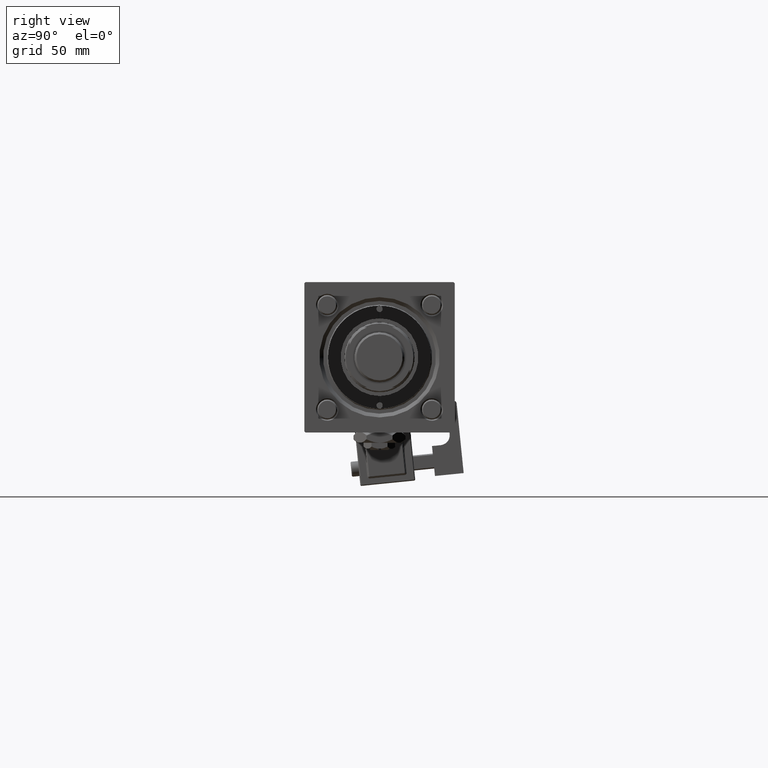
[diagram: clean part render]
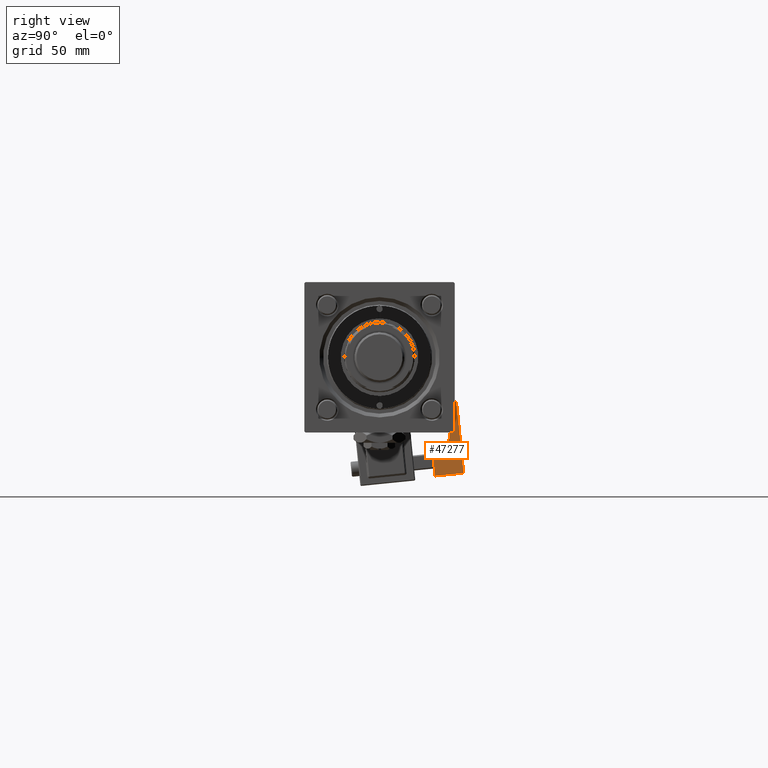
[diagram: same view with one face highlighted and labeled with its STEP entity id]
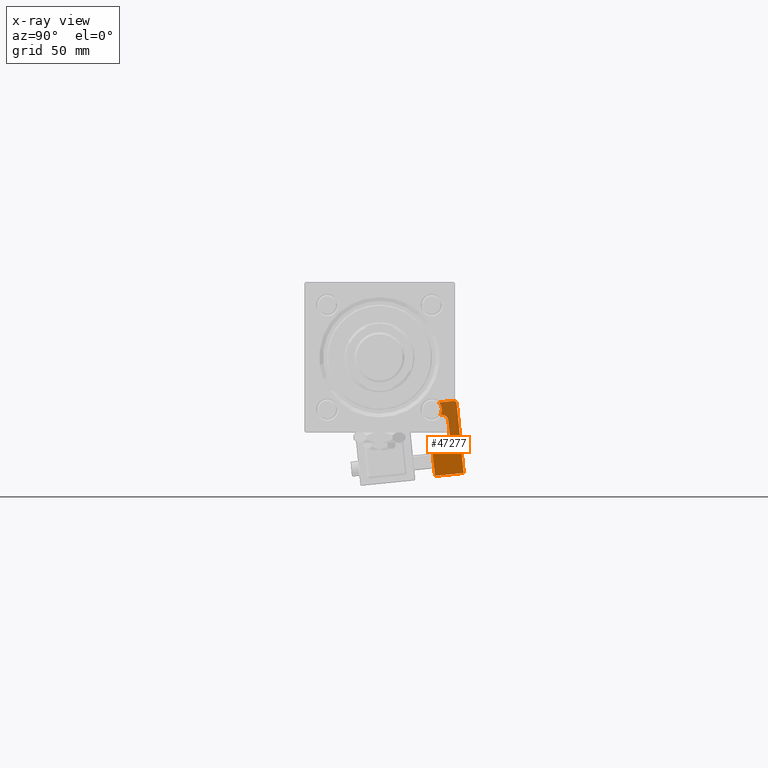
[diagram: x-ray of the same camera — body ghosted, the highlighted face saturated]
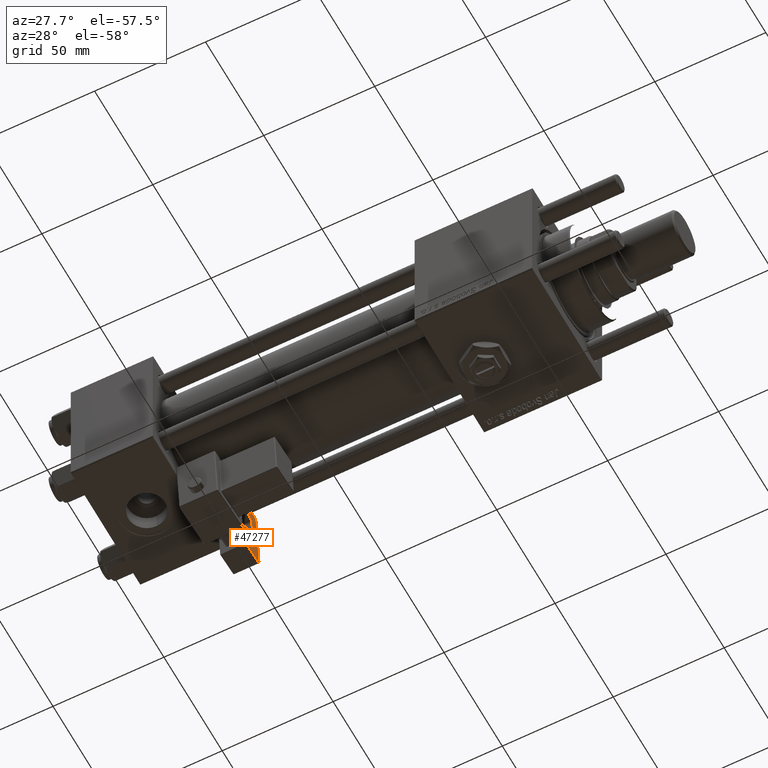
[diagram: same view with one face highlighted and labeled with its STEP entity id]
A machine part, right view. The second image highlights one B-rep face of the part: STEP entity #47277.
The next image is the same camera in x-ray: the body ghosted, the highlighted face saturated — about 22% of this face is hidden behind the body in this view.
A second angle (auxiliary view) of the same face is appended — the face is thin or edge-on in the first view.
In plain terms, the highlighted planar face has unit normal (-1, 0, 0).
Its self-contained STEP definition (entity closure, byte-faithful):
#1027 = DIRECTION ( 'NONE',  ( -0.000000000000000000, -0.000000000000000000, -1.000000000000000000 ) ) ;
#2803 = CARTESIAN_POINT ( 'NONE',  ( 5.750000000000000000, 5.750000000000001776, 12.00000000000000000 ) ) ;
#3410 = FACE_OUTER_BOUND ( 'NONE', #27022, .T. ) ;
#4634 = CARTESIAN_POINT ( 'NONE',  ( 5.750000000000000000, 5.750000000000001776, 0.000000000000000000 ) ) ;
#5125 = VECTOR ( 'NONE', #53177, 1000.000000000000000 ) ;
#5418 = CARTESIAN_POINT ( 'NONE',  ( 5.750000000000000000, 5.750000000000001776, 12.00000000000000000 ) ) ;
#6031 = LINE ( 'NONE', #5418, #5125 ) ;
#6368 = CARTESIAN_POINT ( 'NONE',  ( 5.750000000000000000, 1.749999999999997558, 16.00000000000000000 ) ) ;
#6593 = VERTEX_POINT ( 'NONE', #7686 ) ;
#6712 = VERTEX_POINT ( 'NONE', #41748 ) ;
#7686 = CARTESIAN_POINT ( 'NONE',  ( 5.750000000000000000, 4.750000000000002665, 29.00000000000000000 ) ) ;
#8461 = ORIENTED_EDGE ( 'NONE', *, *, #21937, .T. ) ;
#8710 = VERTEX_POINT ( 'NONE', #31130 ) ;
#9748 = ORIENTED_EDGE ( 'NONE', *, *, #43886, .T. ) ;
#10296 = CARTESIAN_POINT ( 'NONE',  ( 5.750000000000000000, -0.7500000000000007772, 21.50000000000000000 ) ) ;
#11820 = DIRECTION ( 'NONE',  ( -0.000000000000000000, 1.000000000000000000, -0.000000000000000000 ) ) ;
#12790 = LINE ( 'NONE', #32599, #17118 ) ;
#12921 = CARTESIAN_POINT ( 'NONE',  ( 5.750000000000000000, 1.749999999999999112, 21.50000000000000000 ) ) ;
#13217 = CARTESIAN_POINT ( 'NONE',  ( 5.750000000000000000, 5.750000000000001776, 0.000000000000000000 ) ) ;
#13461 = ORIENTED_EDGE ( 'NONE', *, *, #39842, .T. ) ;
#15068 = VERTEX_POINT ( 'NONE', #47446 ) ;
#15398 = CARTESIAN_POINT ( 'NONE',  ( 5.750000000000000000, -1.249999999999999334, 29.00000000000000000 ) ) ;
#15788 = LINE ( 'NONE', #44898, #59937 ) ;
#15878 = VERTEX_POINT ( 'NONE', #33485 ) ;
#16726 = CIRCLE ( 'NONE', #34540, 2.499999999999998668 ) ;
#16845 = CARTESIAN_POINT ( 'NONE',  ( 5.750000000000000000, 4.750000000000001776, 28.00000000000000000 ) ) ;
#17118 = VECTOR ( 'NONE', #55261, 1000.000000000000000 ) ;
#19024 = CARTESIAN_POINT ( 'NONE',  ( 5.750000000000000000, -5.750000000000000000, 12.00000000000000000 ) ) ;
#20099 = CARTESIAN_POINT ( 'NONE',  ( 5.750000000000000000, -5.750000000000000000, 0.000000000000000000 ) ) ;
#20339 = ORIENTED_EDGE ( 'NONE', *, *, #58560, .F. ) ;
#20357 = VERTEX_POINT ( 'NONE', #6368 ) ;
#20858 = EDGE_CURVE ( 'NONE', #6593, #36948, #36941, .T. ) ;
#20914 = VECTOR ( 'NONE', #11820, 1000.000000000000000 ) ;
#21504 = VECTOR ( 'NONE', #1027, 1000.000000000000000 ) ;
#21937 = EDGE_CURVE ( 'NONE', #15068, #42614, #16726, .T. ) ;
#22336 = DIRECTION ( 'NONE',  ( 0.000000000000000000, 0.000000000000000000, 1.000000000000000000 ) ) ;
#22579 = DIRECTION ( 'NONE',  ( 0.000000000000000000, 1.000000000000000000, 0.000000000000000000 ) ) ;
#23636 = DIRECTION ( 'NONE',  ( -1.000000000000000000, 0.000000000000000000, 0.000000000000000000 ) ) ;
#24222 = DIRECTION ( 'NONE',  ( 0.000000000000000000, -1.000000000000000000, 0.000000000000000000 ) ) ;
#24589 = VECTOR ( 'NONE', #24929, 1000.000000000000000 ) ;
#24929 = DIRECTION ( 'NONE',  ( -0.000000000000000000, 1.000000000000000000, -0.000000000000000000 ) ) ;
#25568 = AXIS2_PLACEMENT_3D ( 'NONE', #50252, #60183, #22336 ) ;
#26724 = VECTOR ( 'NONE', #24222, 1000.000000000000000 ) ;
#27022 = EDGE_LOOP ( 'NONE', ( #31137, #34137, #46558, #43198, #35290, #8461, #58965, #13461, #20339, #9748, #52562 ) ) ;
#27285 = AXIS2_PLACEMENT_3D ( 'NONE', #16845, #49722, #35737 ) ;
#29306 = EDGE_CURVE ( 'NONE', #6712, #49495, #6031, .T. ) ;
#31130 = CARTESIAN_POINT ( 'NONE',  ( 5.750000000000000000, -2.250000000000001776, 12.00000000000000000 ) ) ;
#31137 = ORIENTED_EDGE ( 'NONE', *, *, #29306, .F. ) ;
#31260 = AXIS2_PLACEMENT_3D ( 'NONE', #32086, #46667, #33000 ) ;
#31726 = EDGE_CURVE ( 'NONE', #42614, #20357, #12790, .T. ) ;
#31940 = VERTEX_POINT ( 'NONE', #20099 ) ;
#32086 = CARTESIAN_POINT ( 'NONE',  ( 5.750000000000000000, -2.250000000000002665, 16.00000000000000000 ) ) ;
#32599 = CARTESIAN_POINT ( 'NONE',  ( 5.750000000000000000, 1.750000000000000000, 24.00000000000000000 ) ) ;
#33000 = DIRECTION ( 'NONE',  ( 0.000000000000000000, 0.000000000000000000, 1.000000000000000000 ) ) ;
#33485 = CARTESIAN_POINT ( 'NONE',  ( 5.750000000000000000, -1.249999999999999334, 24.00000000000000000 ) ) ;
#34137 = ORIENTED_EDGE ( 'NONE', *, *, #39263, .T. ) ;
#34540 = AXIS2_PLACEMENT_3D ( 'NONE', #10296, #23636, #56823 ) ;
#35290 = ORIENTED_EDGE ( 'NONE', *, *, #37701, .T. ) ;
#35737 = DIRECTION ( 'NONE',  ( 0.000000000000000000, -2.602085213965208275E-15, 1.000000000000000000 ) ) ;
#36941 = LINE ( 'NONE', #55895, #26724 ) ;
#36948 = VERTEX_POINT ( 'NONE', #15398 ) ;
#37701 = EDGE_CURVE ( 'NONE', #15878, #15068, #15788, .T. ) ;
#39263 = EDGE_CURVE ( 'NONE', #6712, #6593, #57017, .T. ) ;
#39842 = EDGE_CURVE ( 'NONE', #20357, #8710, #47130, .T. ) ;
#40614 = PLANE ( 'NONE',  #48224 ) ;
#41748 = CARTESIAN_POINT ( 'NONE',  ( 5.750000000000000000, 5.750000000000001776, 28.00000000000000000 ) ) ;
#42559 = LINE ( 'NONE', #19024, #21504 ) ;
#42614 = VERTEX_POINT ( 'NONE', #12921 ) ;
#43198 = ORIENTED_EDGE ( 'NONE', *, *, #49239, .T. ) ;
#43886 = EDGE_CURVE ( 'NONE', #44132, #31940, #42559, .T. ) ;
#44132 = VERTEX_POINT ( 'NONE', #55105 ) ;
#44898 = CARTESIAN_POINT ( 'NONE',  ( 5.750000000000000000, -1.249999999999999334, 24.00000000000000000 ) ) ;
#45259 = LINE ( 'NONE', #54588, #20914 ) ;
#46204 = DIRECTION ( 'NONE',  ( -1.000000000000000000, 0.000000000000000000, 0.000000000000000000 ) ) ;
#46423 = EDGE_CURVE ( 'NONE', #31940, #49495, #56448, .T. ) ;
#46558 = ORIENTED_EDGE ( 'NONE', *, *, #20858, .T. ) ;
#46667 = DIRECTION ( 'NONE',  ( -1.000000000000000000, 0.000000000000000000, 0.000000000000000000 ) ) ;
#47130 = CIRCLE ( 'NONE', #31260, 4.000000000000000000 ) ;
#47277 = ADVANCED_FACE ( 'NONE', ( #3410 ), #40614, .F. ) ;
#47446 = CARTESIAN_POINT ( 'NONE',  ( 5.750000000000000000, -0.7500000000000007772, 24.00000000000000000 ) ) ;
#48224 = AXIS2_PLACEMENT_3D ( 'NONE', #2803, #46204, #59584 ) ;
#49239 = EDGE_CURVE ( 'NONE', #36948, #15878, #57225, .T. ) ;
#49495 = VERTEX_POINT ( 'NONE', #13217 ) ;
#49722 = DIRECTION ( 'NONE',  ( 1.000000000000000000, -0.000000000000000000, -0.000000000000000000 ) ) ;
#50252 = CARTESIAN_POINT ( 'NONE',  ( 5.750000000000000000, -4.372498999199198266, 26.50000000000000355 ) ) ;
#52562 = ORIENTED_EDGE ( 'NONE', *, *, #46423, .T. ) ;
#53177 = DIRECTION ( 'NONE',  ( -0.000000000000000000, -0.000000000000000000, -1.000000000000000000 ) ) ;
#54588 = CARTESIAN_POINT ( 'NONE',  ( 5.750000000000000000, 5.750000000000001776, 12.00000000000000000 ) ) ;
#55105 = CARTESIAN_POINT ( 'NONE',  ( 5.750000000000000000, -5.750000000000000000, 12.00000000000000000 ) ) ;
#55261 = DIRECTION ( 'NONE',  ( 0.000000000000000000, -3.071906155375595568E-16, -1.000000000000000000 ) ) ;
#55895 = CARTESIAN_POINT ( 'NONE',  ( 5.750000000000000000, 5.750000000000000000, 29.00000000000000000 ) ) ;
#56448 = LINE ( 'NONE', #4634, #24589 ) ;
#56823 = DIRECTION ( 'NONE',  ( 0.000000000000000000, 0.000000000000000000, 1.000000000000000000 ) ) ;
#57017 = CIRCLE ( 'NONE', #27285, 1.000000000000000888 ) ;
#57225 = CIRCLE ( 'NONE', #25568, 4.000000000000000000 ) ;
#58560 = EDGE_CURVE ( 'NONE', #44132, #8710, #45259, .T. ) ;
#58965 = ORIENTED_EDGE ( 'NONE', *, *, #31726, .T. ) ;
#59584 = DIRECTION ( 'NONE',  ( 0.000000000000000000, 0.000000000000000000, 1.000000000000000000 ) ) ;
#59937 = VECTOR ( 'NONE', #22579, 1000.000000000000000 ) ;
#60183 = DIRECTION ( 'NONE',  ( -1.000000000000000000, 0.000000000000000000, 0.000000000000000000 ) ) ;